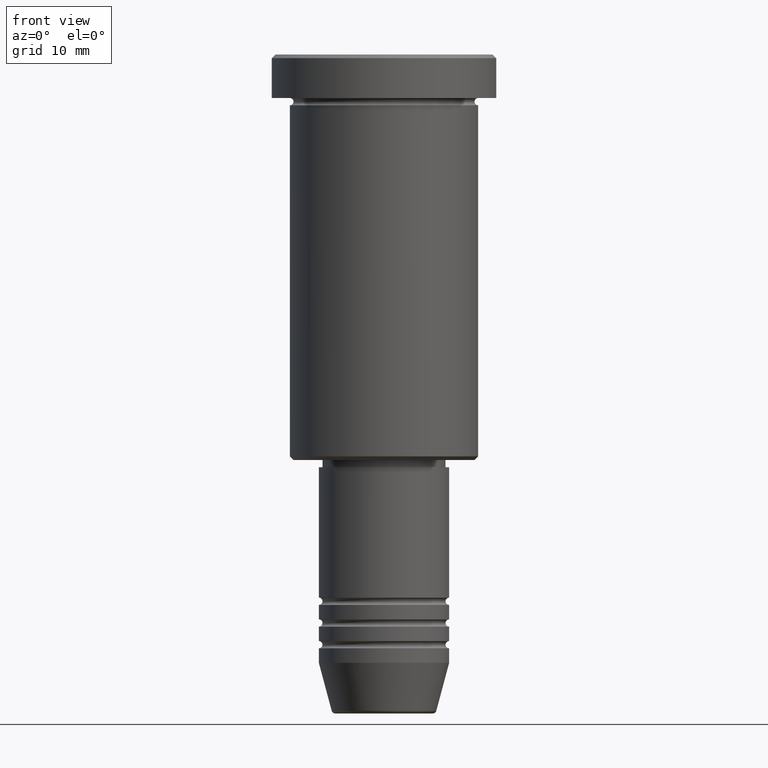
[diagram: clean part render]
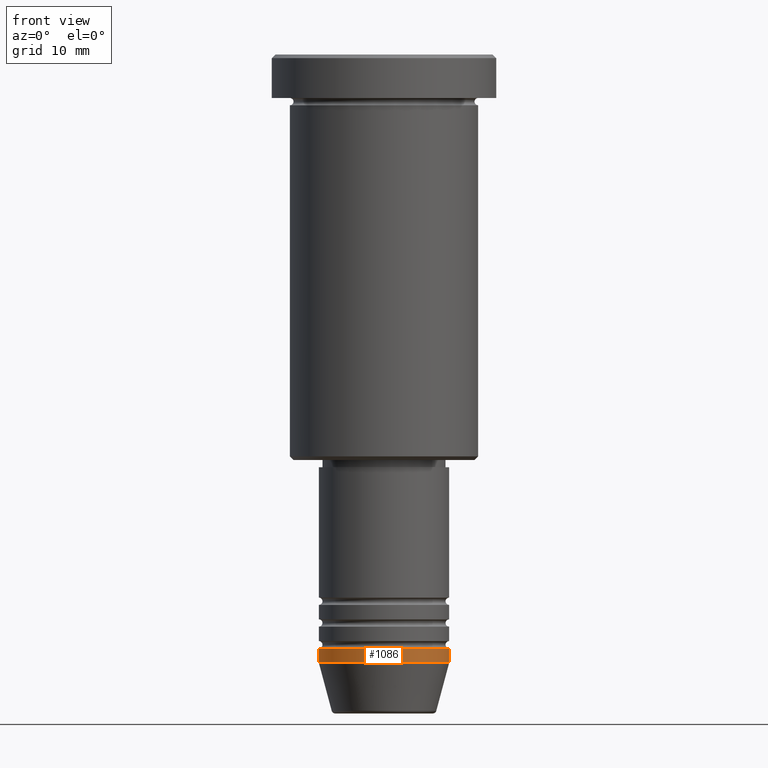
[diagram: same view with one face highlighted and labeled with its STEP entity id]
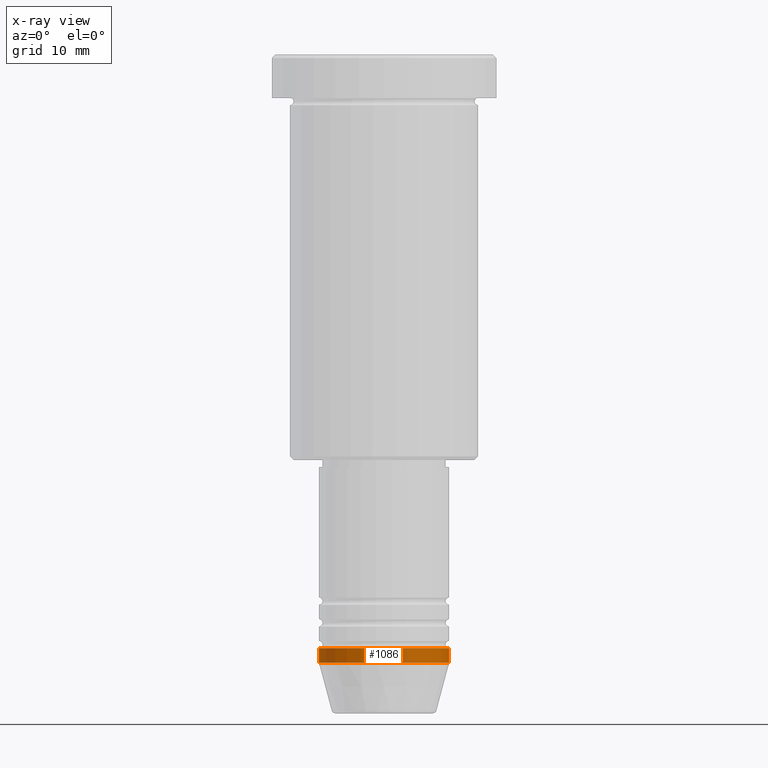
[diagram: x-ray of the same camera — body ghosted, the highlighted face saturated]
A machine part, front view. The second image highlights one B-rep face of the part: STEP entity #1086.
The next image is the same camera in x-ray: the body ghosted, the highlighted face saturated — about 0% of this face is hidden behind the body in this view.
In plain terms, the highlighted cylindrical surface (partial cylindrical patch) has radius 9 mm, axis along (-0, -0, 1).
Its self-contained STEP definition (entity closure, byte-faithful):
#7 = EDGE_CURVE ( 'NONE', #1040, #480, #863, .T. ) ;
#33 = VECTOR ( 'NONE', #898, 1000.000000000000000 ) ;
#102 = CIRCLE ( 'NONE', #813, 9.000000000000000000 ) ;
#110 = DIRECTION ( 'NONE',  ( -0.000000000000000000, -0.000000000000000000, 1.000000000000000000 ) ) ;
#164 = CARTESIAN_POINT ( 'NONE',  ( 9.000000000000000000, 0.000000000000000000, 0.000000000000000000 ) ) ;
#237 = DIRECTION ( 'NONE',  ( -0.000000000000000000, -0.000000000000000000, 1.000000000000000000 ) ) ;
#245 = CARTESIAN_POINT ( 'NONE',  ( 0.000000000000000000, 0.000000000000000000, -82.00000000000000000 ) ) ;
#269 = DIRECTION ( 'NONE',  ( 1.000000000000000000, 0.000000000000000000, 0.000000000000000000 ) ) ;
#368 = CARTESIAN_POINT ( 'NONE',  ( -9.000000000000000000, 1.102182119232617714E-15, -82.00000000000000000 ) ) ;
#400 = CARTESIAN_POINT ( 'NONE',  ( 9.000000000000000000, 0.000000000000000000, -84.00000000000000000 ) ) ;
#411 = AXIS2_PLACEMENT_3D ( 'NONE', #245, #237, #1142 ) ;
#425 = VERTEX_POINT ( 'NONE', #723 ) ;
#430 = ORIENTED_EDGE ( 'NONE', *, *, #1069, .T. ) ;
#478 = ORIENTED_EDGE ( 'NONE', *, *, #7, .F. ) ;
#480 = VERTEX_POINT ( 'NONE', #1097 ) ;
#500 = ORIENTED_EDGE ( 'NONE', *, *, #733, .F. ) ;
#534 = DIRECTION ( 'NONE',  ( 1.000000000000000000, 0.000000000000000000, 0.000000000000000000 ) ) ;
#674 = ORIENTED_EDGE ( 'NONE', *, *, #956, .T. ) ;
#706 = CYLINDRICAL_SURFACE ( 'NONE', #1138, 9.000000000000000000 ) ;
#723 = CARTESIAN_POINT ( 'NONE',  ( -9.000000000000000000, 1.102182119232617714E-15, -84.00000000000000000 ) ) ;
#724 = FACE_OUTER_BOUND ( 'NONE', #1019, .T. ) ;
#733 = EDGE_CURVE ( 'NONE', #425, #1040, #940, .T. ) ;
#813 = AXIS2_PLACEMENT_3D ( 'NONE', #819, #1074, #269 ) ;
#819 = CARTESIAN_POINT ( 'NONE',  ( 0.000000000000000000, 0.000000000000000000, -84.00000000000000000 ) ) ;
#838 = CARTESIAN_POINT ( 'NONE',  ( -9.000000000000000000, 1.102182119232617714E-15, 0.000000000000000000 ) ) ;
#863 = CIRCLE ( 'NONE', #411, 9.000000000000000000 ) ;
#898 = DIRECTION ( 'NONE',  ( -0.000000000000000000, -0.000000000000000000, 1.000000000000000000 ) ) ;
#940 = LINE ( 'NONE', #838, #1176 ) ;
#956 = EDGE_CURVE ( 'NONE', #1166, #480, #1067, .T. ) ;
#990 = DIRECTION ( 'NONE',  ( -0.000000000000000000, -0.000000000000000000, 1.000000000000000000 ) ) ;
#1019 = EDGE_LOOP ( 'NONE', ( #500, #430, #674, #478 ) ) ;
#1040 = VERTEX_POINT ( 'NONE', #368 ) ;
#1067 = LINE ( 'NONE', #164, #33 ) ;
#1069 = EDGE_CURVE ( 'NONE', #425, #1166, #102, .T. ) ;
#1074 = DIRECTION ( 'NONE',  ( -0.000000000000000000, -0.000000000000000000, 1.000000000000000000 ) ) ;
#1086 = ADVANCED_FACE ( 'NONE', ( #724 ), #706, .T. ) ;
#1090 = CARTESIAN_POINT ( 'NONE',  ( 0.000000000000000000, 0.000000000000000000, 0.000000000000000000 ) ) ;
#1097 = CARTESIAN_POINT ( 'NONE',  ( 9.000000000000000000, 0.000000000000000000, -82.00000000000000000 ) ) ;
#1138 = AXIS2_PLACEMENT_3D ( 'NONE', #1090, #990, #534 ) ;
#1142 = DIRECTION ( 'NONE',  ( 1.000000000000000000, 0.000000000000000000, 0.000000000000000000 ) ) ;
#1166 = VERTEX_POINT ( 'NONE', #400 ) ;
#1176 = VECTOR ( 'NONE', #110, 1000.000000000000000 ) ;